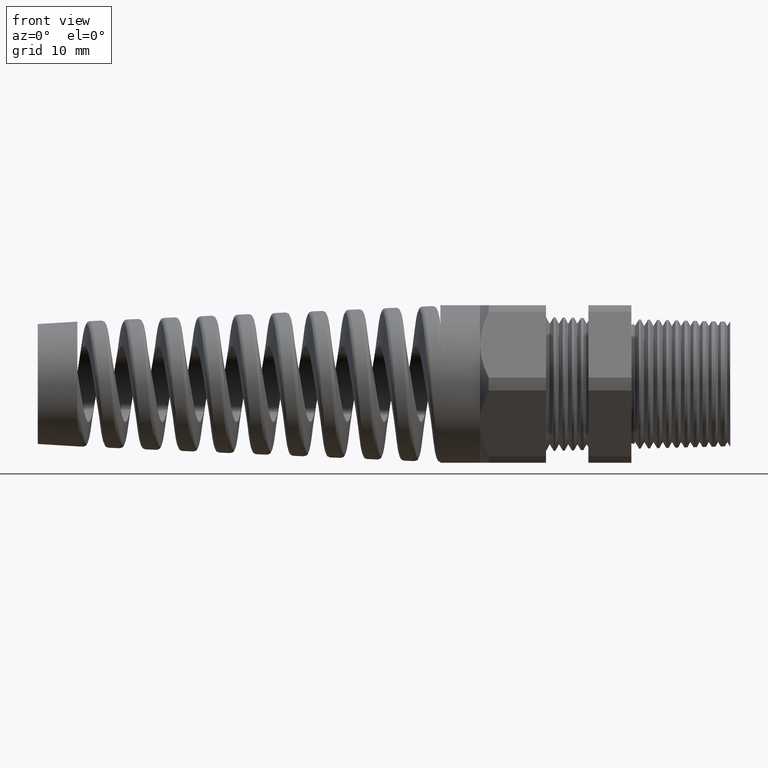
[diagram: clean part render]
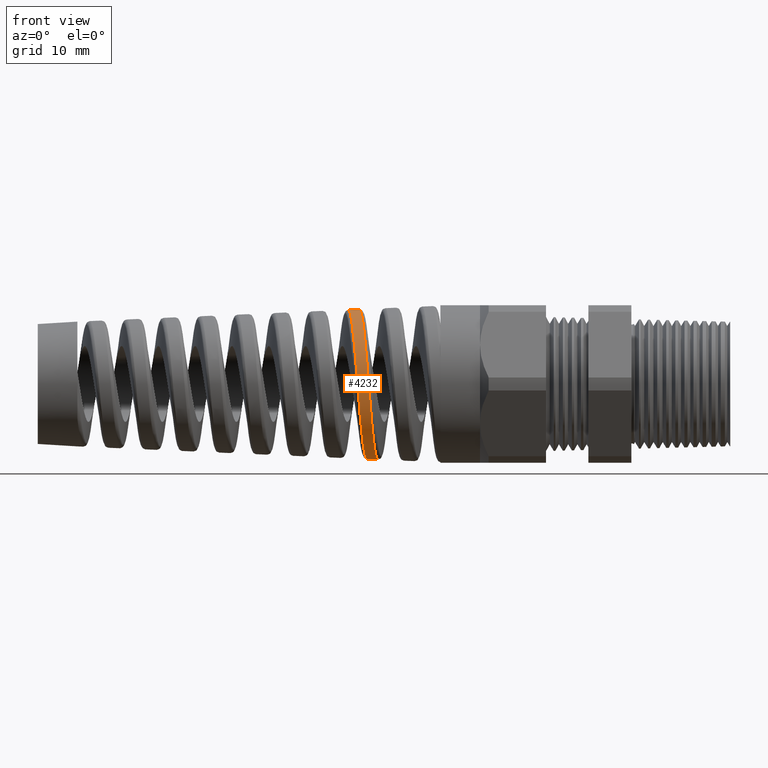
[diagram: same view with one face highlighted and labeled with its STEP entity id]
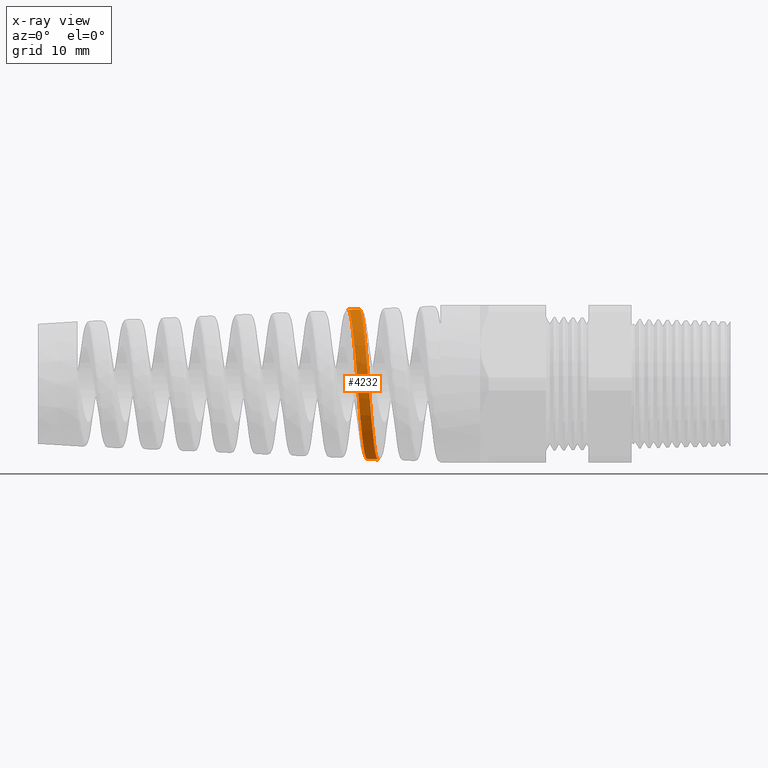
[diagram: x-ray of the same camera — body ghosted, the highlighted face saturated]
A machine part, front view. The second image highlights one B-rep face of the part: STEP entity #4232.
The next image is the same camera in x-ray: the body ghosted, the highlighted face saturated — about 0% of this face is hidden behind the body in this view.
In plain terms, the highlighted conical surface has half-angle 2.5 deg.
Its self-contained STEP definition (entity closure, byte-faithful):
#547 = EDGE_CURVE ( 'NONE', #16937, #16958, #5372, .T. ) ;
#3818 = CARTESIAN_POINT ( 'NONE',  ( -1.888226911411655400, -0.4252269341753804300, 0.1421228687937884600 ) ) ;
#3819 = CARTESIAN_POINT ( 'NONE',  ( -1.877939910680907400, -0.4478868404833896700, 0.01256607719775541500 ) ) ;
#3820 = CARTESIAN_POINT ( 'NONE',  ( -1.881393671605839300, -0.4443116998951446300, 0.05669238558785054400 ) ) ;
#3821 = CARTESIAN_POINT ( 'NONE',  ( -1.892852597501248900, -0.4026462393191122500, 0.1967541545006236400 ) ) ;
#3823 = CARTESIAN_POINT ( 'NONE',  ( -1.885951977527802000, -0.4336569732626263100, 0.1141319408636118400 ) ) ;
#3824 = CARTESIAN_POINT ( 'NONE',  ( -1.860799395673175400, -0.4023719450351495000, -0.2004158394905745400 ) ) ;
#3827 = CARTESIAN_POINT ( 'NONE',  ( -1.903155755998271700, -0.3271866332481744300, 0.3045083561673894700 ) ) ;
#3829 = CARTESIAN_POINT ( 'NONE',  ( -1.864212558125100800, -0.4191819711910804200, -0.1599448065605746600 ) ) ;
#3831 = CARTESIAN_POINT ( 'NONE',  ( -1.901995202086261800, -0.3371651577464439600, 0.2934981983879195200 ) ) ;
#3833 = CARTESIAN_POINT ( 'NONE',  ( -1.926118007265456700, -0.07309511969314877500, 0.4399311013407288800 ) ) ;
#3834 = CARTESIAN_POINT ( 'NONE',  ( -1.913470810467521100, -0.2247517460735166700, 0.3866536478116573400 ) ) ;
#3835 = CARTESIAN_POINT ( 'NONE',  ( -1.865352961376350900, -0.4241418948427284600, -0.1461475887865788800 ) ) ;
#3836 = CARTESIAN_POINT ( 'NONE',  ( -1.908886051501053700, -0.2734231193885604500, 0.3541650650601954600 ) ) ;
#3837 = CARTESIAN_POINT ( 'NONE',  ( -1.872234283199724300, -0.4449370053286203500, -0.06047873787755005100 ) ) ;
#3838 = CARTESIAN_POINT ( 'NONE',  ( -1.915794773959800000, -0.1984223643516747300, 0.4006884480521669100 ) ) ;
#3839 = CARTESIAN_POINT ( 'NONE',  ( -1.868804165682605300, -0.4363376543823194700, -0.1035698277651715300 ) ) ;
#3840 = CARTESIAN_POINT ( 'NONE',  ( -1.922651930070664200, -0.1164092088360294400, 0.4314112323064954700 ) ) ;
#3841 = CARTESIAN_POINT ( 'NONE',  ( -1.882534298672691800, -0.4421684859987063400, 0.07117450987158492600 ) ) ;
#3842 = CARTESIAN_POINT ( 'NONE',  ( -1.930730827739433300, -0.01458923034126045200, 0.4455179633430256200 ) ) ;
#3843 = CARTESIAN_POINT ( 'NONE',  ( -1.874504077914724000, -0.4478300976472613900, -0.03144426997048617400 ) ) ;
#3844 = CARTESIAN_POINT ( 'NONE',  ( -1.899698599197402900, -0.3557942060658923500, 0.2707796640540394700 ) ) ;
#3845 = CARTESIAN_POINT ( 'NONE',  ( -1.929585784894258100, -0.02918725190062162700, 0.4448530023393493800 ) ) ;
#3848 = CARTESIAN_POINT ( 'NONE',  ( -1.931875058399298300, 4.191299094358204700E-016, 0.4454680051535111500 ) ) ;
#3849 = CARTESIAN_POINT ( 'NONE',  ( -1.920373568207518900, -0.1443561572293411100, 0.4229723574856819600 ) ) ;
#3850 = CARTESIAN_POINT ( 'NONE',  ( -1.906607701528299600, -0.2959993341305509100, 0.3356695932522724700 ) ) ;
#3851 = CARTESIAN_POINT ( 'NONE',  ( -1.927282588142396100, -0.05840027047966495100, 0.4420691351830691200 ) ) ;
#3852 = CARTESIAN_POINT ( 'NONE',  ( -1.879097015109752100, -0.4471758169649228700, 0.02739510778953222600 ) ) ;
#3853 = CARTESIAN_POINT ( 'NONE',  ( -1.898557374830649500, -0.3644959912285861100, 0.2590279254812564200 ) ) ;
#3854 = CARTESIAN_POINT ( 'NONE',  ( -1.895136183163367300, -0.3887996886826065600, 0.2226204213211824000 ) ) ;
#3856 = CARTESIAN_POINT ( 'NONE',  ( -1.867651913272242400, -0.4327354208842382800, -0.1179216690162283900 ) ) ;
#4180 = EDGE_LOOP ( 'NONE', ( #4181, #17072, #17468, #17079 ) ) ;
#4181 = ORIENTED_EDGE ( 'NONE', *, *, #4182, .F. ) ;
#4182 = EDGE_CURVE ( 'NONE', #17037, #16958, #16581, .T. ) ;
#4232 = ADVANCED_FACE ( 'NONE', ( #16577 ), #16575, .T. ) ;
#5353 = CARTESIAN_POINT ( 'NONE',  ( -1.858534364681788700, -0.3886098008404059200, -0.2261776999527793100 ) ) ;
#5354 = CARTESIAN_POINT ( 'NONE',  ( -1.855086080755283100, -0.3640335612387241600, -0.2629388410272337500 ) ) ;
#5355 = CARTESIAN_POINT ( 'NONE',  ( -1.853931670191374200, -0.3551982163916013200, -0.2748349289979316600 ) ) ;
#5356 = CARTESIAN_POINT ( 'NONE',  ( -1.851647212132211400, -0.3365922942035442500, -0.2974814125129414100 ) ) ;
#5357 = CARTESIAN_POINT ( 'NONE',  ( -1.850511585714591700, -0.3267794289916899900, -0.3082975052224318800 ) ) ;
#5358 = CARTESIAN_POINT ( 'NONE',  ( -1.848241799742443200, -0.3061486528082909600, -0.3289288006284693000 ) ) ;
#5359 = CARTESIAN_POINT ( 'NONE',  ( -1.847107506887344800, -0.2953307544344749800, -0.3387440011584020300 ) ) ;
#5360 = CARTESIAN_POINT ( 'NONE',  ( -1.844827764840405200, -0.2726760405108957200, -0.3573583025086234900 ) ) ;
#5361 = CARTESIAN_POINT ( 'NONE',  ( -1.843675982211116200, -0.2607703232681298800, -0.3662011686076036000 ) ) ;
#5362 = CARTESIAN_POINT ( 'NONE',  ( -1.840238062770717600, -0.2240326385526339200, -0.3907682218053665800 ) ) ;
#5363 = CARTESIAN_POINT ( 'NONE',  ( -1.837974570087754600, -0.1982800719829036200, -0.4045368095539214100 ) ) ;
#5364 = CARTESIAN_POINT ( 'NONE',  ( -1.834563522699140400, -0.1578115116563167900, -0.4213716991176794700 ) ) ;
#5365 = CARTESIAN_POINT ( 'NONE',  ( -1.833424571771611800, -0.1440131379904307500, -0.4263424876754430300 ) ) ;
#5366 = CARTESIAN_POINT ( 'NONE',  ( -1.831131671975176500, -0.1157805558898164200, -0.4349627869130980900 ) ) ;
#5367 = CARTESIAN_POINT ( 'NONE',  ( -1.829985595744680200, -0.1014456590631604000, -0.4385751258780364300 ) ) ;
#5368 = CARTESIAN_POINT ( 'NONE',  ( -1.826575847722437400, -0.05837584116575989000, -0.4472235093789148100 ) ) ;
#5369 = CARTESIAN_POINT ( 'NONE',  ( -1.824321287969834300, -0.02934557558990121000, -0.4501639041838605400 ) ) ;
#5370 = CARTESIAN_POINT ( 'NONE',  ( -1.822040881429618700, 5.096541791137408800E-013, -0.4502634688835878100 ) ) ;
#5372 = B_SPLINE_CURVE_WITH_KNOTS ( 'NONE', 3,
 ( #5370, #5369, #5368, #5367, #5366, #5365, #5364, #5363, #5362, #5361, #5360, #5359, #5358, #5357, #5356, #5355, #5354, #5353, #3824, #3829, #3835, #3856, #3839, #3837, #3843, #3819, #3852, #3820, #3841, #3823, #3818, #3821, #3854, #3853, #3844, #3831, #3827, #3850, #3836, #3834, #3838, #3849, #3840, #3833, #3851, #3845, #3842, #3848 ),
 .UNSPECIFIED., .F., .F.,
 ( 4, 2, 2, 2, 2, 2, 2, 2, 2, 2, 2, 2, 2, 2, 2, 2, 2, 2, 2, 2, 2, 2, 2, 4 ),
 ( 0.1255313081312199600, 0.1277874085176010900, 0.1289154587107916600, 0.1300435089039822200, 0.1322996092903633300, 0.1334276594835539000, 0.1345557096767444600, 0.1356837598699350300, 0.1368118100631256200, 0.1390679104495067500, 0.1401959606426973200, 0.1413240108358878900, 0.1435801112222690200, 0.1447081614154596100, 0.1458362116086501800, 0.1480923119950313100, 0.1503484123814124700, 0.1514764625746030400, 0.1526045127677936000, 0.1548606131541747400, 0.1571167135405558700, 0.1593728139269370000, 0.1605008641201275700, 0.1616289143133181300 ),
 .UNSPECIFIED. ) ;
#14116 = DIRECTION ( 'NONE',  ( 0.9990482215818576900, 0.0000000000000000000, -0.04361938736533631200 ) ) ;
#14117 = VECTOR ( 'NONE', #14116, 39.37007874015748100 ) ;
#14119 = CARTESIAN_POINT ( 'NONE',  ( -1.369999999999999900, 0.0000000000000000000, -0.4699999999999999700 ) ) ;
#14120 = LINE ( 'NONE', #14119, #14117 ) ;
#14131 = CARTESIAN_POINT ( 'NONE',  ( -1.822040881429618700, 5.096541791137408800E-013, -0.4502634688835878100 ) ) ;
#14355 = CARTESIAN_POINT ( 'NONE',  ( -1.931875058399298300, 4.191299094358204700E-016, 0.4454680051535111500 ) ) ;
#14474 = CARTESIAN_POINT ( 'NONE',  ( -1.997179054133377600, 2.395702547092106200E-015, 0.4426167711240677800 ) ) ;
#14664 = CARTESIAN_POINT ( 'NONE',  ( -1.887011458288743200, -4.772883062602677700E-013, -0.4474267922366084200 ) ) ;
#15342 = B_SPLINE_CURVE_WITH_KNOTS ( 'NONE', 3,
 ( #15425, #15424, #15423, #15422, #15421, #15420, #15419, #15418, #15417, #15416, #15415, #15414, #15413, #15412, #15411, #15410, #15409, #15408, #15407, #15406, #15405, #15404, #15403, #15402, #15401, #15400, #15399, #15398, #15397, #15396, #15395, #15394, #15393, #15392, #15391, #15390, #15389, #15388, #15387, #15386, #15385, #15384, #15383, #15382, #15381, #15380, #15456, #15455, #15454 ),
 .UNSPECIFIED., .F., .F.,
 ( 4, 2, 1, 2, 2, 2, 2, 2, 2, 2, 2, 2, 2, 2, 2, 2, 2, 2, 2, 2, 2, 2, 2, 2, 4 ),
 ( 0.4835318501432520600, 0.4846569971671901300, 0.4857821441911282500, 0.4869072912150663200, 0.4880324382390043800, 0.4902827322868805700, 0.4925330263347567100, 0.4947833203826329000, 0.4959084674065709600, 0.4970336144305090300, 0.4992839084783852200, 0.5015342025262613500, 0.5026593495501994200, 0.5037844965741376000, 0.5060347906220137300, 0.5071599376459518000, 0.5082850846698898600, 0.5105353787177660000, 0.5116605257417040600, 0.5127856727656421300, 0.5139108197895803100, 0.5150359668135183800, 0.5172862608613945100, 0.5184114078853325800, 0.5195365549092706400 ),
 .UNSPECIFIED. ) ;
#15380 = CARTESIAN_POINT ( 'NONE',  ( -1.891601834576169800, -0.05839475361302715700, -0.4436396247729971200 ) ) ;
#15381 = CARTESIAN_POINT ( 'NONE',  ( -1.892741111532881600, -0.07279148060642783000, -0.4414508792061300800 ) ) ;
#15382 = CARTESIAN_POINT ( 'NONE',  ( -1.896151624453251700, -0.1154602306082979800, -0.4328335482027621500 ) ) ;
#15383 = CARTESIAN_POINT ( 'NONE',  ( -1.898415744389383000, -0.1432157094315472100, -0.4243731336837491300 ) ) ;
#15384 = CARTESIAN_POINT ( 'NONE',  ( -1.901866084587960200, -0.1837783216979090000, -0.4074932898150169800 ) ) ;
#15385 = CARTESIAN_POINT ( 'NONE',  ( -1.903021496807565200, -0.1970721070983282600, -0.4011735596753435700 ) ) ;
#15386 = CARTESIAN_POINT ( 'NONE',  ( -1.905309797490056400, -0.2227260393258062600, -0.3874035327524099600 ) ) ;
#15387 = CARTESIAN_POINT ( 'NONE',  ( -1.906448489895234700, -0.2351576586449729800, -0.3799249156952551100 ) ) ;
#15388 = CARTESIAN_POINT ( 'NONE',  ( -1.908724018868801900, -0.2592400638134022600, -0.3637965482746803300 ) ) ;
#15389 = CARTESIAN_POINT ( 'NONE',  ( -1.909861260996022800, -0.2708908138333421800, -0.3551468018632000200 ) ) ;
#15390 = CARTESIAN_POINT ( 'NONE',  ( -1.912147156205076200, -0.2933986823657385200, -0.3366588717183962000 ) ) ;
#15391 = CARTESIAN_POINT ( 'NONE',  ( -1.913302152967659900, -0.3043117033436328300, -0.3267621246451352100 ) ) ;
#15392 = CARTESIAN_POINT ( 'NONE',  ( -1.916751091580032100, -0.3353403453083391700, -0.2956928378757818200 ) ) ;
#15393 = CARTESIAN_POINT ( 'NONE',  ( -1.919022636820879400, -0.3537225213370921400, -0.2732488207277409800 ) ) ;
#15394 = CARTESIAN_POINT ( 'NONE',  ( -1.922450395208742800, -0.3779218208779603300, -0.2370532739639842600 ) ) ;
#15395 = CARTESIAN_POINT ( 'NONE',  ( -1.923596081702389200, -0.3854219698686568400, -0.2245635057645045400 ) ) ;
#15396 = CARTESIAN_POINT ( 'NONE',  ( -1.925902407856370900, -0.3992541023311499400, -0.1987089531626223800 ) ) ;
#15397 = CARTESIAN_POINT ( 'NONE',  ( -1.927055811143950900, -0.4055336164955264900, -0.1854275804299631800 ) ) ;
#15398 = CARTESIAN_POINT ( 'NONE',  ( -1.930486828026077900, -0.4222397294057722600, -0.1451067079384509300 ) ) ;
#15399 = CARTESIAN_POINT ( 'NONE',  ( -1.932755498171060000, -0.4306745046430191500, -0.1173744335941065800 ) ) ;
#15400 = CARTESIAN_POINT ( 'NONE',  ( -1.936200285594668500, -0.4392452403330810400, -0.07449562476565703400 ) ) ;
#15401 = CARTESIAN_POINT ( 'NONE',  ( -1.937361850558530800, -0.4414219890325533100, -0.05990611157722686200 ) ) ;
#15402 = CARTESIAN_POINT ( 'NONE',  ( -1.939667728003212900, -0.4443009619833567800, -0.03080797926524245200 ) ) ;
#15403 = CARTESIAN_POINT ( 'NONE',  ( -1.940813459026055500, -0.4450161065943710700, -0.01628311009831049900 ) ) ;
#15404 = CARTESIAN_POINT ( 'NONE',  ( -1.944241592256827500, -0.4450406442491126000, 0.02721969363318470200 ) ) ;
#15405 = CARTESIAN_POINT ( 'NONE',  ( -1.946515889558697600, -0.4422495701897180000, 0.05612644732333544500 ) ) ;
#15406 = CARTESIAN_POINT ( 'NONE',  ( -1.951143415333922700, -0.4308360027189590000, 0.1137343030538959200 ) ) ;
#15407 = CARTESIAN_POINT ( 'NONE',  ( -1.953432564353088800, -0.4223593415435540300, 0.1416228422502459100 ) ) ;
#15408 = CARTESIAN_POINT ( 'NONE',  ( -1.956867466446706900, -0.4057426179075528400, 0.1818069725066782900 ) ) ;
#15409 = CARTESIAN_POINT ( 'NONE',  ( -1.958013860012607600, -0.3995449227343564300, 0.1949436665672764900 ) ) ;
#15410 = CARTESIAN_POINT ( 'NONE',  ( -1.960317968244026600, -0.3858053466899048500, 0.2206898839313948300 ) ) ;
#15411 = CARTESIAN_POINT ( 'NONE',  ( -1.961481030922416900, -0.3782205900727587700, 0.2333541726129188000 ) ) ;
#15412 = CARTESIAN_POINT ( 'NONE',  ( -1.964936599642034000, -0.3538807773282644000, 0.2697758743241228700 ) ) ;
#15413 = CARTESIAN_POINT ( 'NONE',  ( -1.967212962845312300, -0.3354768231088088900, 0.2921804291529555000 ) ) ;
#15414 = CARTESIAN_POINT ( 'NONE',  ( -1.971806496569802800, -0.2943789360921899000, 0.3332823408939802300 ) ) ;
#15415 = CARTESIAN_POINT ( 'NONE',  ( -1.974142499643443100, -0.2714549996351099400, 0.3520755153549789400 ) ) ;
#15416 = CARTESIAN_POINT ( 'NONE',  ( -1.978738569103172700, -0.2231085985558154400, 0.3843039636877284600 ) ) ;
#15417 = CARTESIAN_POINT ( 'NONE',  ( -1.981017244669575700, -0.1975267798924658100, 0.3979597224682179200 ) ) ;
#15418 = CARTESIAN_POINT ( 'NONE',  ( -1.984482619008118600, -0.1570071562864043500, 0.4146840815409380000 ) ) ;
#15419 = CARTESIAN_POINT ( 'NONE',  ( -1.985648505364783900, -0.1431028416507881800, 0.4196304782506177800 ) ) ;
#15420 = CARTESIAN_POINT ( 'NONE',  ( -1.987957129591893900, -0.1151750503561849600, 0.4280345189147004000 ) ) ;
#15421 = CARTESIAN_POINT ( 'NONE',  ( -1.990254942313428600, -0.08698653262064505500, 0.4350170407725902400 ) ) ;
#15422 = CARTESIAN_POINT ( 'NONE',  ( -1.992551914123774200, -0.05828743258144440700, 0.4392067941874662800 ) ) ;
#15423 = CARTESIAN_POINT ( 'NONE',  ( -1.994857175286806500, -0.02933094510461817600, 0.4419848406145963600 ) ) ;
#15424 = CARTESIAN_POINT ( 'NONE',  ( -1.996018045216758200, -0.01466657466462890400, 0.4426674618680926400 ) ) ;
#15425 = CARTESIAN_POINT ( 'NONE',  ( -1.997179054133377600, 2.395702547092106200E-015, 0.4426167711240677800 ) ) ;
#15454 = CARTESIAN_POINT ( 'NONE',  ( -1.887011458288743200, -4.772883062602677700E-013, -0.4474267922366084200 ) ) ;
#15455 = CARTESIAN_POINT ( 'NONE',  ( -1.888153357583427900, -0.01455441528864630600, -0.4473769358366803700 ) ) ;
#15456 = CARTESIAN_POINT ( 'NONE',  ( -1.889305661399047800, -0.02924460750864764000, -0.4466100072193592800 ) ) ;
#16571 = DIRECTION ( 'NONE',  ( 0.0000000000000000000, 0.0000000000000000000, -1.000000000000000000 ) ) ;
#16572 = DIRECTION ( 'NONE',  ( 1.000000000000000000, 0.0000000000000000000, 0.0000000000000000000 ) ) ;
#16573 = CARTESIAN_POINT ( 'NONE',  ( -1.369999999999999900, 0.0000000000000000000, 0.0000000000000000000 ) ) ;
#16574 = AXIS2_PLACEMENT_3D ( 'NONE', #16573, #16572, #16571 ) ;
#16575 = CONICAL_SURFACE ( 'NONE', #16574, 0.4699999999999999700, 0.04363323129985854900 ) ;
#16577 = FACE_OUTER_BOUND ( 'NONE', #4180, .T. ) ;
#16578 = DIRECTION ( 'NONE',  ( 0.9990482215818576900, 5.341834311772761800E-018, 0.04361938736533631200 ) ) ;
#16579 = VECTOR ( 'NONE', #16578, 39.37007874015748100 ) ;
#16580 = CARTESIAN_POINT ( 'NONE',  ( -1.369999999999999900, 5.755839955992559700E-017, 0.4699999999999999700 ) ) ;
#16581 = LINE ( 'NONE', #16580, #16579 ) ;
#16937 = VERTEX_POINT ( 'NONE', #14131 ) ;
#16939 = EDGE_CURVE ( 'NONE', #17215, #16937, #14120, .T. ) ;
#16958 = VERTEX_POINT ( 'NONE', #14355 ) ;
#17037 = VERTEX_POINT ( 'NONE', #14474 ) ;
#17072 = ORIENTED_EDGE ( 'NONE', *, *, #17475, .T. ) ;
#17079 = ORIENTED_EDGE ( 'NONE', *, *, #547, .T. ) ;
#17215 = VERTEX_POINT ( 'NONE', #14664 ) ;
#17468 = ORIENTED_EDGE ( 'NONE', *, *, #16939, .T. ) ;
#17475 = EDGE_CURVE ( 'NONE', #17037, #17215, #15342, .T. ) ;